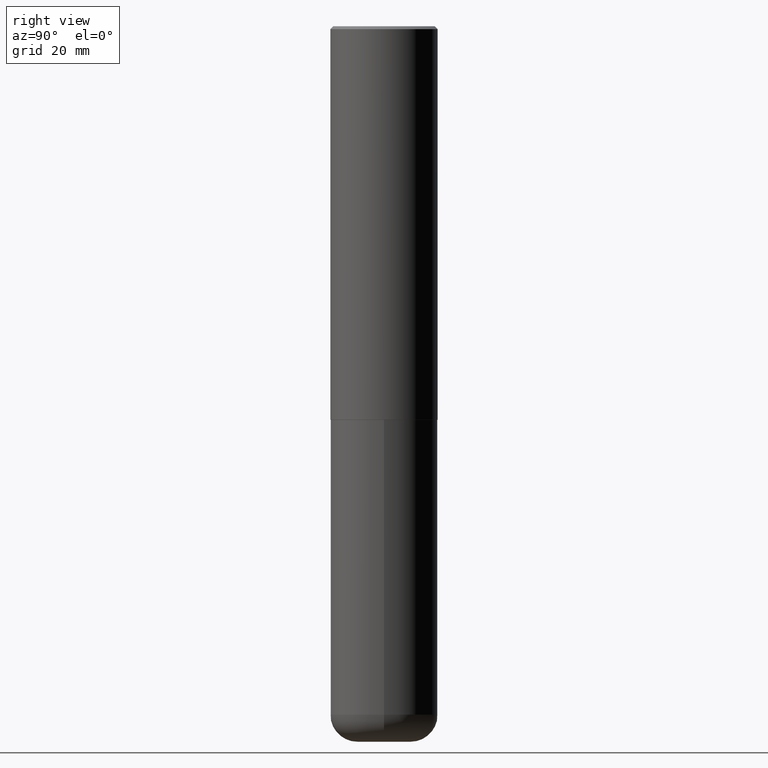
[diagram: clean part render]
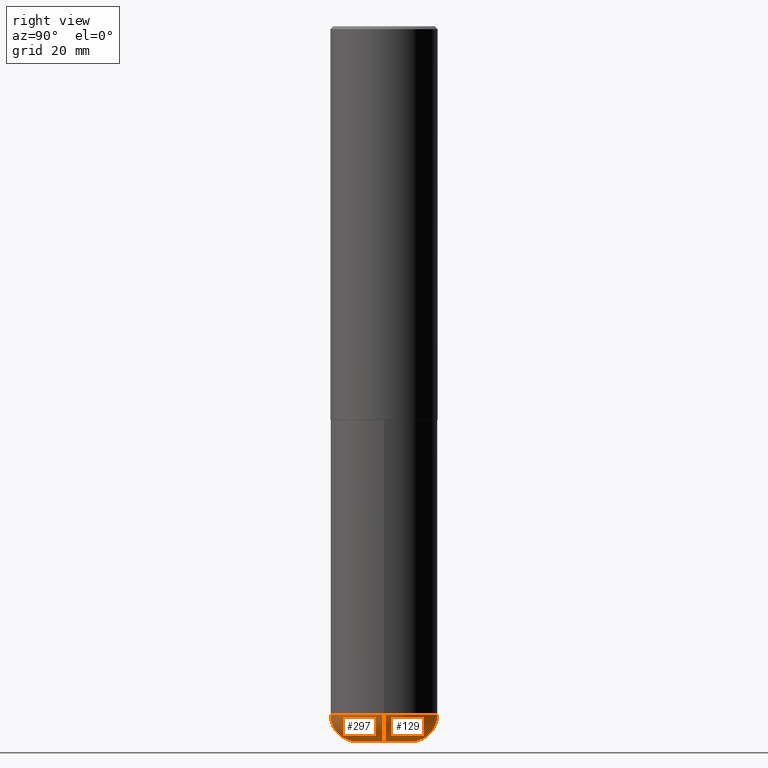
[diagram: same view with one multi-face feature highlighted, each face labeled with its STEP entity id]
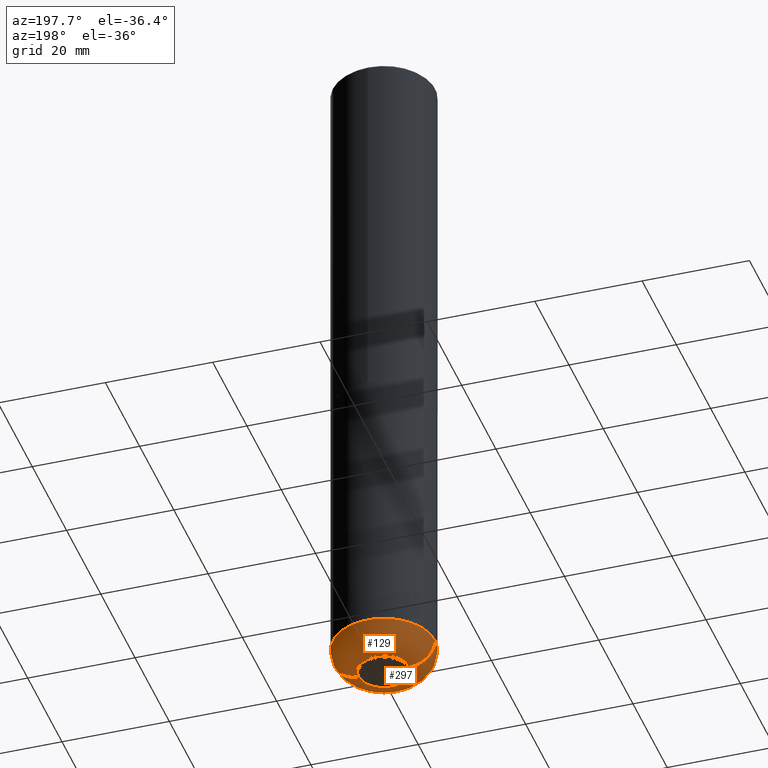
[diagram: same view with one multi-face feature highlighted, each face labeled with its STEP entity id]
A machine part, right view. The highlighted faces form ONE feature: a constant-radius fillet chain: 2 tangent blend faces with common blend radius 4.826 mm. The faces share edges in the B-rep.
A second angle (auxiliary view) of the same feature is appended — it is thin or edge-on in the first view.
Their STEP definitions:
[1] entity #129 (Torus):
#7 = DIRECTION ( 'NONE',  ( -2.445468806185136597E-29, 3.491481338843145583E-15, 1.000000000000000000 ) ) ;
#9 = DIRECTION ( 'NONE',  ( -6.982962677686266711E-15, -1.000000000000000000, 3.491481338843145583E-15 ) ) ;
#44 = TOROIDAL_SURFACE ( 'NONE', #403, 0.1850000000000000533, 0.1899999999999999467 ) ;
#48 = DIRECTION ( 'NONE',  ( -2.445468806185136597E-29, 3.491481338843145583E-15, 1.000000000000000000 ) ) ;
#49 = CARTESIAN_POINT ( 'NONE',  ( 1.176270495775050811E-28, -1.679402523983553013E-14, -4.810000000000000497 ) ) ;
#63 = VERTEX_POINT ( 'NONE', #237 ) ;
#81 = AXIS2_PLACEMENT_3D ( 'NONE', #163, #9, #336 ) ;
#85 = CARTESIAN_POINT ( 'NONE',  ( 1.222734403092568523E-28, -1.745740669421572989E-14, -5.000000000000000000 ) ) ;
#105 = FACE_OUTER_BOUND ( 'NONE', #182, .T. ) ;
#108 = ORIENTED_EDGE ( 'NONE', *, *, #302, .T. ) ;
#114 = EDGE_CURVE ( 'NONE', #148, #63, #200, .T. ) ;
#129 = ADVANCED_FACE ( 'NONE', ( #105 ), #44, .T. ) ;
#135 = DIRECTION ( 'NONE',  ( 1.000000000000000000, -6.982962677686265922E-15, 0.000000000000000000 ) ) ;
#137 = VERTEX_POINT ( 'NONE', #367 ) ;
#148 = VERTEX_POINT ( 'NONE', #397 ) ;
#156 = DIRECTION ( 'NONE',  ( 7.105427357601001859E-15, 1.000000000000000000, -3.491481338843145583E-15 ) ) ;
#163 = CARTESIAN_POINT ( 'NONE',  ( 0.1850000000000000533, -1.808587333520749010E-14, -4.810000000000000497 ) ) ;
#177 = EDGE_CURVE ( 'NONE', #63, #137, #290, .T. ) ;
#182 = EDGE_LOOP ( 'NONE', ( #108, #315, #406, #269 ) ) ;
#184 = CIRCLE ( 'NONE', #398, 0.1850000000000000810 ) ;
#188 = DIRECTION ( 'NONE',  ( -1.000000000000000000, 7.105427357601001070E-15, 0.000000000000000000 ) ) ;
#200 = CIRCLE ( 'NONE', #81, 0.1899999999999999190 ) ;
#224 = CARTESIAN_POINT ( 'NONE',  ( -0.1850000000000000810, -1.513619630689734772E-14, -5.000000000000000000 ) ) ;
#237 = CARTESIAN_POINT ( 'NONE',  ( 0.3750000000000000555, -1.941263624396788015E-14, -4.810000000000000497 ) ) ;
#256 = DIRECTION ( 'NONE',  ( -2.445468806185136597E-29, 3.491481338843145583E-15, 1.000000000000000000 ) ) ;
#269 = ORIENTED_EDGE ( 'NONE', *, *, #114, .F. ) ;
#272 = AXIS2_PLACEMENT_3D ( 'NONE', #296, #7, #135 ) ;
#290 = CIRCLE ( 'NONE', #272, 0.3750000000000001110 ) ;
#296 = CARTESIAN_POINT ( 'NONE',  ( 1.176270495775050811E-28, -1.679402523983553013E-14, -4.810000000000000497 ) ) ;
#302 = EDGE_CURVE ( 'NONE', #148, #380, #184, .T. ) ;
#315 = ORIENTED_EDGE ( 'NONE', *, *, #395, .T. ) ;
#320 = DIRECTION ( 'NONE',  ( 1.000000000000000000, -6.982962677686272233E-15, 0.000000000000000000 ) ) ;
#327 = AXIS2_PLACEMENT_3D ( 'NONE', #353, #156, #188 ) ;
#336 = DIRECTION ( 'NONE',  ( 1.000000000000000000, -6.982962677686264344E-15, 0.000000000000000000 ) ) ;
#353 = CARTESIAN_POINT ( 'NONE',  ( -0.1850000000000000533, -1.547952117867934441E-14, -4.810000000000000497 ) ) ;
#363 = CIRCLE ( 'NONE', #327, 0.1899999999999999190 ) ;
#367 = CARTESIAN_POINT ( 'NONE',  ( -0.3750000000000000555, -1.412948998073515443E-14, -4.810000000000000497 ) ) ;
#380 = VERTEX_POINT ( 'NONE', #224 ) ;
#394 = DIRECTION ( 'NONE',  ( 1.000000000000000000, -6.982962677686269077E-15, 4.883557194083113462E-29 ) ) ;
#395 = EDGE_CURVE ( 'NONE', #380, #137, #363, .T. ) ;
#397 = CARTESIAN_POINT ( 'NONE',  ( 0.1850000000000000810, -1.874925478958768986E-14, -5.000000000000000000 ) ) ;
#398 = AXIS2_PLACEMENT_3D ( 'NONE', #85, #256, #320 ) ;
#403 = AXIS2_PLACEMENT_3D ( 'NONE', #49, #48, #394 ) ;
#406 = ORIENTED_EDGE ( 'NONE', *, *, #177, .F. ) ;
[2] entity #297 (Torus):
#8 = EDGE_LOOP ( 'NONE', ( #304, #250, #361, #72 ) ) ;
#9 = DIRECTION ( 'NONE',  ( -6.982962677686266711E-15, -1.000000000000000000, 3.491481338843145583E-15 ) ) ;
#15 = DIRECTION ( 'NONE',  ( 1.000000000000000000, -6.982962677686265922E-15, 0.000000000000000000 ) ) ;
#63 = VERTEX_POINT ( 'NONE', #237 ) ;
#72 = ORIENTED_EDGE ( 'NONE', *, *, #294, .F. ) ;
#79 = CARTESIAN_POINT ( 'NONE',  ( 1.222734403092568523E-28, -1.745740669421572989E-14, -5.000000000000000000 ) ) ;
#81 = AXIS2_PLACEMENT_3D ( 'NONE', #163, #9, #336 ) ;
#103 = CIRCLE ( 'NONE', #266, 0.3750000000000001110 ) ;
#107 = DIRECTION ( 'NONE',  ( 1.000000000000000000, -6.982962677686272233E-15, 0.000000000000000000 ) ) ;
#111 = FACE_OUTER_BOUND ( 'NONE', #8, .T. ) ;
#114 = EDGE_CURVE ( 'NONE', #148, #63, #200, .T. ) ;
#133 = AXIS2_PLACEMENT_3D ( 'NONE', #216, #346, #312 ) ;
#137 = VERTEX_POINT ( 'NONE', #367 ) ;
#148 = VERTEX_POINT ( 'NONE', #397 ) ;
#156 = DIRECTION ( 'NONE',  ( 7.105427357601001859E-15, 1.000000000000000000, -3.491481338843145583E-15 ) ) ;
#163 = CARTESIAN_POINT ( 'NONE',  ( 0.1850000000000000533, -1.808587333520749010E-14, -4.810000000000000497 ) ) ;
#175 = DIRECTION ( 'NONE',  ( -2.445468806185136597E-29, 3.491481338843145583E-15, 1.000000000000000000 ) ) ;
#188 = DIRECTION ( 'NONE',  ( -1.000000000000000000, 7.105427357601001070E-15, 0.000000000000000000 ) ) ;
#200 = CIRCLE ( 'NONE', #81, 0.1899999999999999190 ) ;
#216 = CARTESIAN_POINT ( 'NONE',  ( 1.176270495775050811E-28, -1.679402523983553013E-14, -4.810000000000000497 ) ) ;
#224 = CARTESIAN_POINT ( 'NONE',  ( -0.1850000000000000810, -1.513619630689734772E-14, -5.000000000000000000 ) ) ;
#237 = CARTESIAN_POINT ( 'NONE',  ( 0.3750000000000000555, -1.941263624396788015E-14, -4.810000000000000497 ) ) ;
#249 = EDGE_CURVE ( 'NONE', #380, #148, #326, .T. ) ;
#250 = ORIENTED_EDGE ( 'NONE', *, *, #249, .T. ) ;
#266 = AXIS2_PLACEMENT_3D ( 'NONE', #339, #175, #15 ) ;
#294 = EDGE_CURVE ( 'NONE', #137, #63, #103, .T. ) ;
#297 = ADVANCED_FACE ( 'NONE', ( #111 ), #345, .T. ) ;
#304 = ORIENTED_EDGE ( 'NONE', *, *, #395, .F. ) ;
#312 = DIRECTION ( 'NONE',  ( 1.000000000000000000, -6.982962677686269077E-15, 4.883557194083113462E-29 ) ) ;
#326 = CIRCLE ( 'NONE', #409, 0.1850000000000000810 ) ;
#327 = AXIS2_PLACEMENT_3D ( 'NONE', #353, #156, #188 ) ;
#336 = DIRECTION ( 'NONE',  ( 1.000000000000000000, -6.982962677686264344E-15, 0.000000000000000000 ) ) ;
#337 = DIRECTION ( 'NONE',  ( -2.445468806185136597E-29, 3.491481338843145583E-15, 1.000000000000000000 ) ) ;
#339 = CARTESIAN_POINT ( 'NONE',  ( 1.176270495775050811E-28, -1.679402523983553013E-14, -4.810000000000000497 ) ) ;
#345 = TOROIDAL_SURFACE ( 'NONE', #133, 0.1850000000000000533, 0.1899999999999999467 ) ;
#346 = DIRECTION ( 'NONE',  ( -2.445468806185136597E-29, 3.491481338843145583E-15, 1.000000000000000000 ) ) ;
#353 = CARTESIAN_POINT ( 'NONE',  ( -0.1850000000000000533, -1.547952117867934441E-14, -4.810000000000000497 ) ) ;
#361 = ORIENTED_EDGE ( 'NONE', *, *, #114, .T. ) ;
#363 = CIRCLE ( 'NONE', #327, 0.1899999999999999190 ) ;
#367 = CARTESIAN_POINT ( 'NONE',  ( -0.3750000000000000555, -1.412948998073515443E-14, -4.810000000000000497 ) ) ;
#380 = VERTEX_POINT ( 'NONE', #224 ) ;
#395 = EDGE_CURVE ( 'NONE', #380, #137, #363, .T. ) ;
#397 = CARTESIAN_POINT ( 'NONE',  ( 0.1850000000000000810, -1.874925478958768986E-14, -5.000000000000000000 ) ) ;
#409 = AXIS2_PLACEMENT_3D ( 'NONE', #79, #337, #107 ) ;